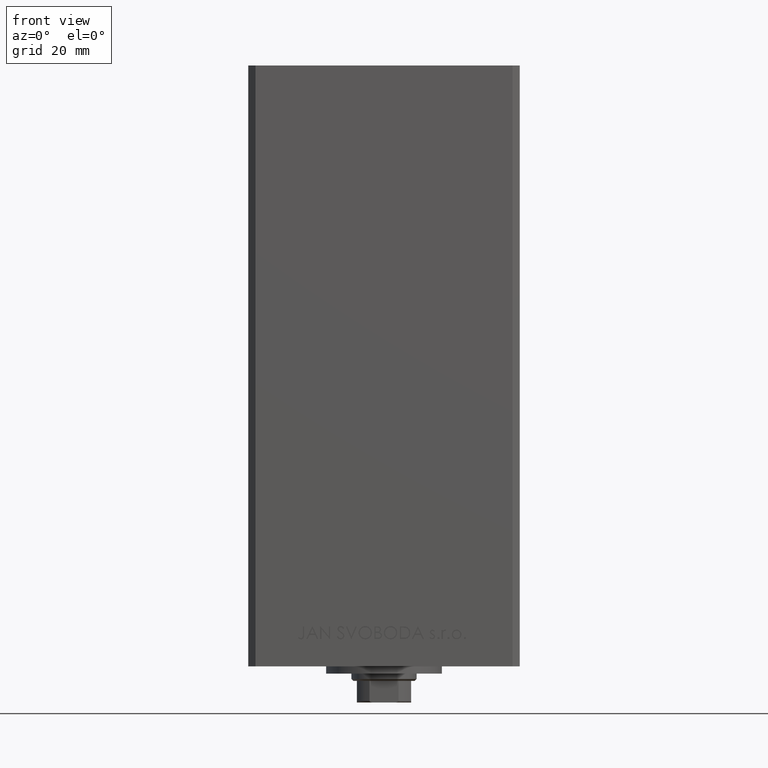
[diagram: clean part render]
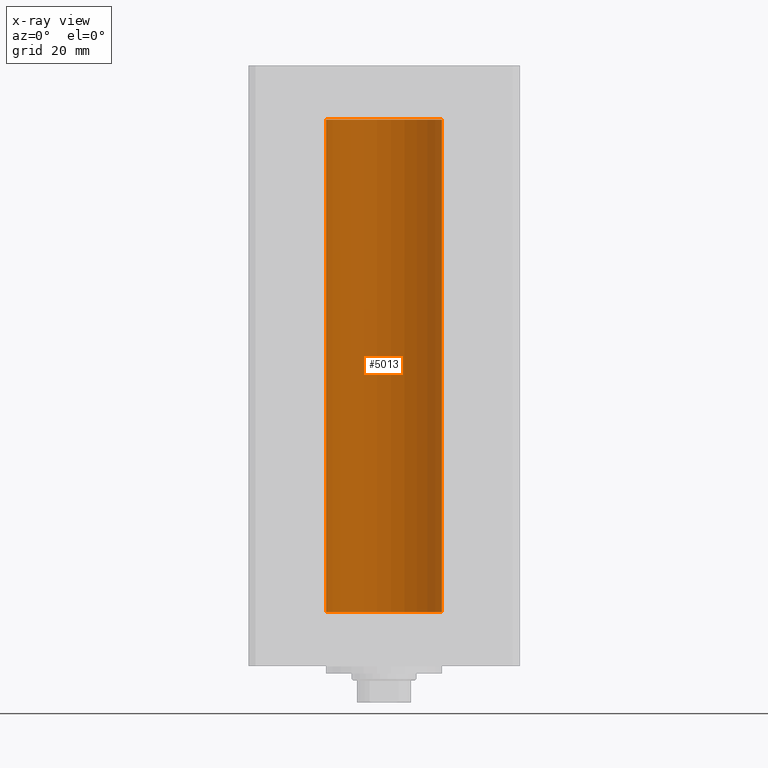
[diagram: x-ray — body ghosted, one internal face saturated and labeled with its STEP entity id]
A machine part, front view, then the same camera in x-ray: the body is ghosted and one INTERNAL B-rep face — a face not visible from any outside direction — is saturated and labeled: STEP entity #5013.
In plain terms, the highlighted cylindrical surface (partial cylindrical patch) has radius 16 mm, axis along (-0, -0, -1).
Its self-contained STEP definition (entity closure, byte-faithful):
#2239 = EDGE_LOOP ( 'NONE', ( #43793, #26143, #30357, #38599 ) ) ;
#3631 = VERTEX_POINT ( 'NONE', #16193 ) ;
#4889 = LINE ( 'NONE', #13029, #6647 ) ;
#5013 = ADVANCED_FACE ( 'NONE', ( #14098 ), #40843, .F. ) ;
#5029 = CARTESIAN_POINT ( 'NONE',  ( -16.00000000000000000, 0.000000000000000000, 136.0000000000000000 ) ) ;
#6181 = DIRECTION ( 'NONE',  ( 1.000000000000000000, 0.000000000000000000, 0.000000000000000000 ) ) ;
#6545 = AXIS2_PLACEMENT_3D ( 'NONE', #40596, #33407, #6924 ) ;
#6647 = VECTOR ( 'NONE', #23954, 1000.000000000000000 ) ;
#6924 = DIRECTION ( 'NONE',  ( -1.000000000000000000, 0.000000000000000000, 0.000000000000000000 ) ) ;
#7351 = AXIS2_PLACEMENT_3D ( 'NONE', #32181, #25501, #6181 ) ;
#8362 = DIRECTION ( 'NONE',  ( 1.000000000000000000, 0.000000000000000000, 0.000000000000000000 ) ) ;
#9924 = DIRECTION ( 'NONE',  ( -0.000000000000000000, -0.000000000000000000, -1.000000000000000000 ) ) ;
#12947 = CARTESIAN_POINT ( 'NONE',  ( -16.00000000000000000, 0.000000000000000000, 0.000000000000000000 ) ) ;
#13029 = CARTESIAN_POINT ( 'NONE',  ( -16.00000000000000000, 0.000000000000000000, 136.0000000000000000 ) ) ;
#14098 = FACE_OUTER_BOUND ( 'NONE', #2239, .T. ) ;
#16193 = CARTESIAN_POINT ( 'NONE',  ( 16.00000000000000000, 1.959434878635765131E-15, 0.000000000000000000 ) ) ;
#19015 = CARTESIAN_POINT ( 'NONE',  ( 0.000000000000000000, 0.000000000000000000, 136.0000000000000000 ) ) ;
#19518 = DIRECTION ( 'NONE',  ( -0.000000000000000000, 0.000000000000000000, 1.000000000000000000 ) ) ;
#21289 = VERTEX_POINT ( 'NONE', #12947 ) ;
#21601 = CIRCLE ( 'NONE', #7351, 16.00000000000000000 ) ;
#23468 = EDGE_CURVE ( 'NONE', #48776, #21289, #4889, .T. ) ;
#23954 = DIRECTION ( 'NONE',  ( -0.000000000000000000, -0.000000000000000000, -1.000000000000000000 ) ) ;
#25501 = DIRECTION ( 'NONE',  ( -0.000000000000000000, 0.000000000000000000, 1.000000000000000000 ) ) ;
#26013 = CARTESIAN_POINT ( 'NONE',  ( 16.00000000000000000, 1.959434878635765131E-15, 136.0000000000000000 ) ) ;
#26143 = ORIENTED_EDGE ( 'NONE', *, *, #43875, .T. ) ;
#28013 = AXIS2_PLACEMENT_3D ( 'NONE', #19015, #19518, #8362 ) ;
#30357 = ORIENTED_EDGE ( 'NONE', *, *, #23468, .T. ) ;
#31692 = EDGE_CURVE ( 'NONE', #46891, #3631, #36673, .T. ) ;
#32181 = CARTESIAN_POINT ( 'NONE',  ( 0.000000000000000000, 0.000000000000000000, 0.000000000000000000 ) ) ;
#33407 = DIRECTION ( 'NONE',  ( -0.000000000000000000, -0.000000000000000000, -1.000000000000000000 ) ) ;
#35801 = CARTESIAN_POINT ( 'NONE',  ( 16.00000000000000000, 1.959434878635765131E-15, 136.0000000000000000 ) ) ;
#36673 = LINE ( 'NONE', #26013, #43237 ) ;
#38599 = ORIENTED_EDGE ( 'NONE', *, *, #39817, .F. ) ;
#39817 = EDGE_CURVE ( 'NONE', #3631, #21289, #21601, .T. ) ;
#40596 = CARTESIAN_POINT ( 'NONE',  ( 0.000000000000000000, 0.000000000000000000, 136.0000000000000000 ) ) ;
#40843 = CYLINDRICAL_SURFACE ( 'NONE', #6545, 16.00000000000000000 ) ;
#43237 = VECTOR ( 'NONE', #9924, 1000.000000000000000 ) ;
#43793 = ORIENTED_EDGE ( 'NONE', *, *, #31692, .F. ) ;
#43875 = EDGE_CURVE ( 'NONE', #46891, #48776, #48580, .T. ) ;
#46891 = VERTEX_POINT ( 'NONE', #35801 ) ;
#48580 = CIRCLE ( 'NONE', #28013, 16.00000000000000000 ) ;
#48776 = VERTEX_POINT ( 'NONE', #5029 ) ;